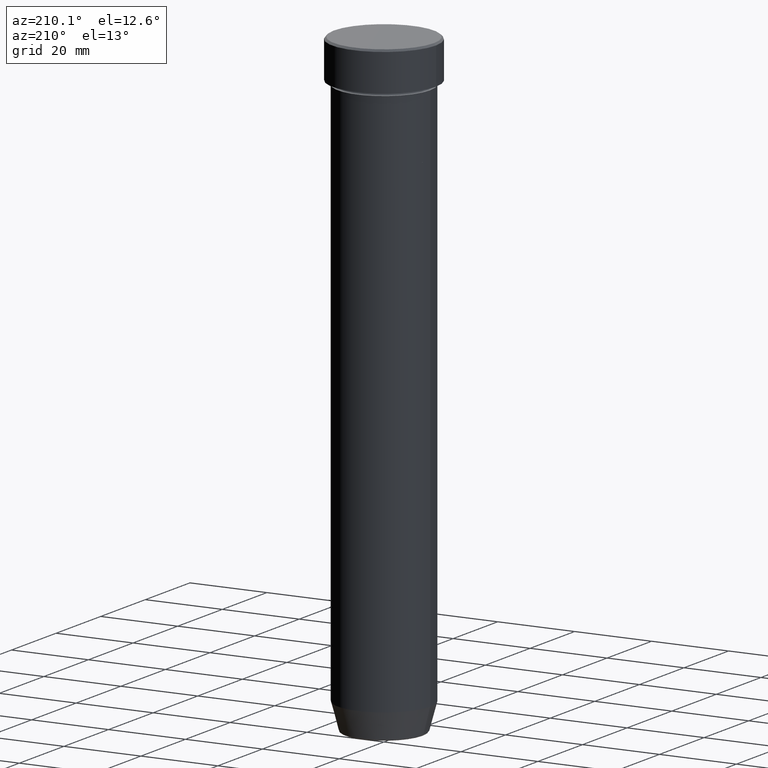
[diagram: clean part render]
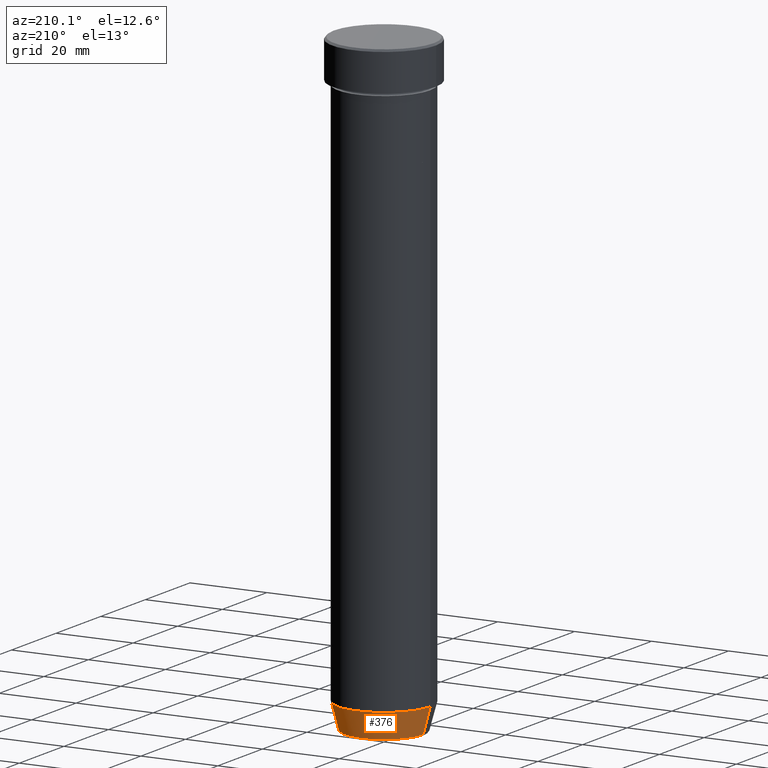
[diagram: same view with one face highlighted and labeled with its STEP entity id]
A machine part, auxiliary view. The second image highlights one B-rep face of the part: STEP entity #376.
In plain terms, the highlighted conical surface has half-angle 15 deg.
Its self-contained STEP definition (entity closure, byte-faithful):
#15 = AXIS2_PLACEMENT_3D ( 'NONE', #349, #395, #441 ) ;
#55 = EDGE_CURVE ( 'NONE', #412, #227, #67, .T. ) ;
#67 = CIRCLE ( 'NONE', #371, 12.00000000000000000 ) ;
#70 = AXIS2_PLACEMENT_3D ( 'NONE', #303, #299, #568 ) ;
#81 = CARTESIAN_POINT ( 'NONE',  ( 12.00000000000000000, 0.000000000000000000, -152.9999999999999716 ) ) ;
#102 = ORIENTED_EDGE ( 'NONE', *, *, #382, .T. ) ;
#118 = FACE_OUTER_BOUND ( 'NONE', #455, .T. ) ;
#121 = VERTEX_POINT ( 'NONE', #570 ) ;
#136 = LINE ( 'NONE', #352, #393 ) ;
#158 = CARTESIAN_POINT ( 'NONE',  ( 0.000000000000000000, 0.000000000000000000, -152.9999999999999716 ) ) ;
#159 = VECTOR ( 'NONE', #571, 1000.000000000000000 ) ;
#202 = CARTESIAN_POINT ( 'NONE',  ( -12.00000000000000000, 1.469576158976823947E-15, -152.9999999999999716 ) ) ;
#209 = LINE ( 'NONE', #386, #159 ) ;
#216 = VERTEX_POINT ( 'NONE', #472 ) ;
#227 = VERTEX_POINT ( 'NONE', #202 ) ;
#299 = DIRECTION ( 'NONE',  ( -0.000000000000000000, -0.000000000000000000, 1.000000000000000000 ) ) ;
#303 = CARTESIAN_POINT ( 'NONE',  ( 0.000000000000000000, 0.000000000000000000, -159.6294095225512706 ) ) ;
#349 = CARTESIAN_POINT ( 'NONE',  ( 0.000000000000000000, 0.000000000000000000, -160.0000000000000000 ) ) ;
#352 = CARTESIAN_POINT ( 'NONE',  ( 10.12435565298212659, 0.000000000000000000, -160.0000000000000000 ) ) ;
#354 = CIRCLE ( 'NONE', #70, 10.22365507213718239 ) ;
#358 = ORIENTED_EDGE ( 'NONE', *, *, #419, .T. ) ;
#364 = DIRECTION ( 'NONE',  ( 1.000000000000000000, 0.000000000000000000, 0.000000000000000000 ) ) ;
#371 = AXIS2_PLACEMENT_3D ( 'NONE', #158, #523, #364 ) ;
#376 = ADVANCED_FACE ( 'NONE', ( #118 ), #537, .T. ) ;
#382 = EDGE_CURVE ( 'NONE', #216, #121, #354, .T. ) ;
#386 = CARTESIAN_POINT ( 'NONE',  ( -10.12435565298212659, 1.239875974385397166E-15, -160.0000000000000000 ) ) ;
#393 = VECTOR ( 'NONE', #597, 1000.000000000000000 ) ;
#395 = DIRECTION ( 'NONE',  ( -0.000000000000000000, -0.000000000000000000, 1.000000000000000000 ) ) ;
#412 = VERTEX_POINT ( 'NONE', #81 ) ;
#419 = EDGE_CURVE ( 'NONE', #121, #227, #209, .T. ) ;
#441 = DIRECTION ( 'NONE',  ( 1.000000000000000000, 0.000000000000000000, 0.000000000000000000 ) ) ;
#451 = ORIENTED_EDGE ( 'NONE', *, *, #475, .F. ) ;
#455 = EDGE_LOOP ( 'NONE', ( #102, #358, #593, #451 ) ) ;
#472 = CARTESIAN_POINT ( 'NONE',  ( 10.22365507213718239, 0.000000000000000000, -159.6294095225512706 ) ) ;
#475 = EDGE_CURVE ( 'NONE', #216, #412, #136, .T. ) ;
#523 = DIRECTION ( 'NONE',  ( -0.000000000000000000, -0.000000000000000000, 1.000000000000000000 ) ) ;
#537 = CONICAL_SURFACE ( 'NONE', #15, 10.12435565298212659, 0.2617993877991501850 ) ;
#568 = DIRECTION ( 'NONE',  ( -1.000000000000000000, 0.000000000000000000, 0.000000000000000000 ) ) ;
#570 = CARTESIAN_POINT ( 'NONE',  ( -10.22365507213718239, 1.360806402472382153E-15, -159.6294095225512706 ) ) ;
#571 = DIRECTION ( 'NONE',  ( -0.2588190451025214611, 3.169619151431773569E-17, 0.9659258262890680902 ) ) ;
#593 = ORIENTED_EDGE ( 'NONE', *, *, #55, .F. ) ;
#597 = DIRECTION ( 'NONE',  ( 0.2588190451025214611, 0.000000000000000000, 0.9659258262890680902 ) ) ;